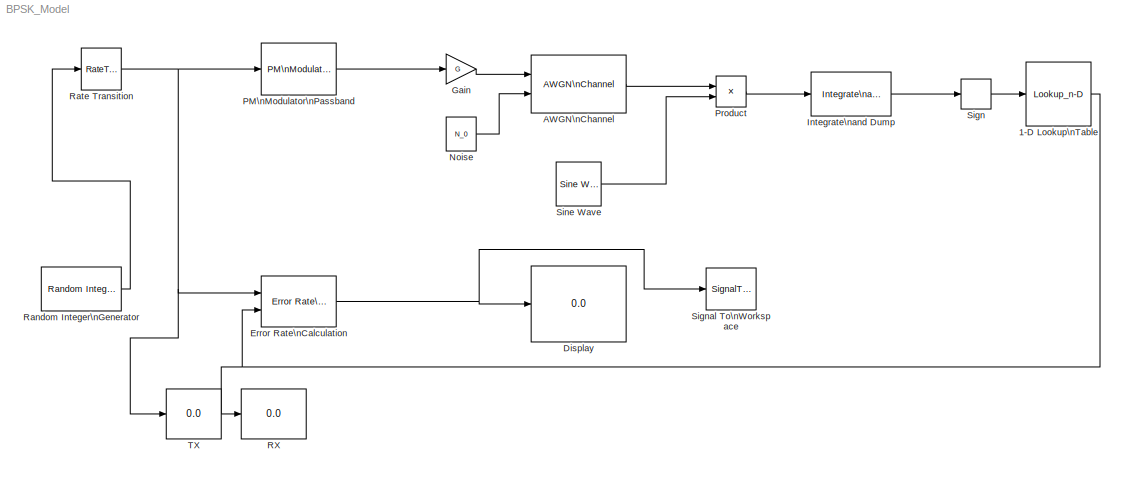
MODEL BPSK_Model
KIND model
BLOCK [Lookup_n-D] 1-D Lookup\nTable
  BreakpointsForDimension1 = [-1 0 1]
  InternalRulePriority = Speed
  NumberOfTableDimensions = 1
  Ports = [1, 1]
  RndMeth = Simplest
  SID = 12
  Table = [-1 0 1]
BLOCK [Reference] AWGN\nChannel  REF=commchan3/AWGN\nChannel
  EbNodB = 1
  EsNodB = 10
  InputProcessing = Columns as channels (frame based)
  Ports = [2, 1]
  Ps = 1
  SID = 6
  SNRdB = 10
  SourceBlock = commchan3/AWGN\nChannel
  SourceType = AWGN Channel
  Tsym = 1
  UserData = DataTag0
  UserDataPersistent = on
  bitsPerSym = 1
  noiseMode = Variance from port
  seed = 67
  variance = 10
BLOCK [Display] Display
  Decimation = 1
  Ports = [1]
  SID = 13
BLOCK [Reference] Error Rate\nCalculation  REF=commsink2/Error Rate\nCalculation
  N = 0
  PMode = Port
  Ports = [2, 1]
  RsMode2 = off
  SID = 14
  SourceBlock = commsink2/Error Rate\nCalculation
  SourceType = Error Rate Calculation
  WsName = ErrorVec
  cp_mode = Entire frame
  maxBits = 1e6
  numErr = 100
  st_delay = 0
  stop = off
  subframe = []
BLOCK [Gain] Gain
  Gain = G
  OutDataTypeStr = double
  ParamDataTypeStr = Inherit: Inherit via internal rule
  SID = 5
  SampleTime = 1e-3
  SaturateOnIntegerOverflow = off
BLOCK [Reference] Integrate\nand Dump  REF=commfilt2/Integrate\nand Dump
  LockScale = off
  Ports = [1, 1]
  SID = 10
  SourceBlock = commfilt2/Integrate\nand Dump
  SourceType = Integrate and Dump
  accumFracLength = 30
  accumMode = Inherit via internal rule
  accumWordLength = 32
  nodump = off
  obssamples = 4
  offsetsamples = 0
  outputFracLength = 30
  outputMode = Same as accumulator
  outputWordLength = 32
  overflowMode = off
  roundingMode = Floor
BLOCK [Constant] Noise
  SID = 17
  SampleTime = 1e-3
  Value = N_0
BLOCK [Reference] PM\nModulator\nPassband  REF=commanapbnd3/PM\nModulator\nPassband
  Fc = 40e3
  Kc = pi
  Ph = pi
  Ports = [1, 1]
  SID = 4
  SourceBlock = commanapbnd3/PM\nModulator\nPassband
  SourceType = PM Modulator Passband
BLOCK [Product] Product
  InputSameDT = off
  OutDataTypeStr = double
  Ports = [2, 1]
  RndMeth = Nearest
  SID = 9
  SaturateOnIntegerOverflow = off
BLOCK [Display] RX
  Decimation = 1
  Ports = [1]
  SID = 19
BLOCK [Reference] Random Integer\nGenerator  REF=commrandsrc2/Random Integer\nGenerator
  Ports = [0, 1]
  SID = 2
  SourceBlock = commrandsrc2/Random Integer\nGenerator
  SourceType = Random Integer Generator
  Ts = 1e-3
  frameBased = off
  mul = 2
  orient = on
  outDataType = double
  sampPerFrame = 1
  seed = 67
BLOCK [RateTransition] Rate Transition
  OutPortSampleTimeOpt = Multiple of input port sample time
  SID = 3
BLOCK [Signum] Sign
  SID = 18
  SampleTime = 0.001
BLOCK [SignalToWorkspace] Signal To\nWorkspace
  CopyFcn = dspblkcopystw(gcbh);
  MaxDataPoints = inf
  Ports = [1]
  SID = 16
  SaveFormat = Structure With Time
  VariableName = Pb
BLOCK [Reference] Sine Wave  REF=dspsrcs4/Sine Wave
  Amplitude = 1
  CompMethod = Trigonometric fcn
  Frequency = 100
  LastOutDataTypeStr = double
  OutComplex = Real
  OutDataTypeStr = double
  Phase = pi
  Ports = [0, 1]
  ResetState = Restart at time zero
  SID = 8
  SampleMode = Discrete
  SampleTime = 1e-3
  SamplesPerFrame = 1
  SourceBlock = dspsrcs4/Sine Wave
  SourceType = Sine Wave
  TableSize = Speed
  additionalParams = off
  allowOverrides = on
  dataType = double
  fracBitsMode = Best precision
  numFracBits = 15
  udDataType = sfix(16)
  wordLen = 16
BLOCK [Display] TX
  Decimation = 1
  Ports = [1]
  SID = 15
NET 1-D Lookup\nTable:1 -> Error Rate\nCalculation:2, RX:1
LINE AWGN\nChannel:1 -> Product:1
NET Error Rate\nCalculation:1 -> Display:1, Signal To\nWorkspace:1
LINE Gain:1 -> AWGN\nChannel:1
LINE Integrate\nand Dump:1 -> Sign:1
LINE Noise:1 -> AWGN\nChannel:2
LINE PM\nModulator\nPassband:1 -> Gain:1
LINE Product:1 -> Integrate\nand Dump:1
LINE Random Integer\nGenerator:1 -> Rate Transition:1
NET Rate Transition:1 -> Error Rate\nCalculation:1, PM\nModulator\nPassband:1, TX:1
LINE Sign:1 -> 1-D Lookup\nTable:1
LINE Sine Wave:1 -> Product:2
note: NET lines group one-source signal fan-out (src -> all destinations, sorted); 1:1 wires keep LINE
